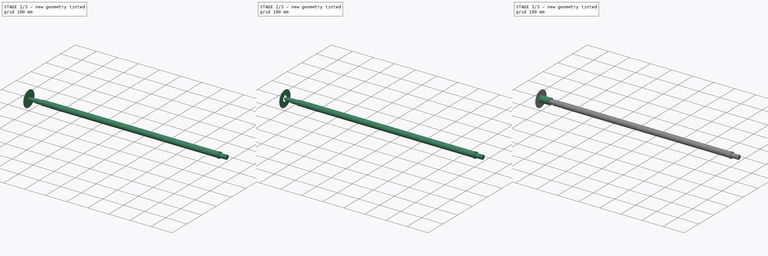
[diagram: build sequence overview — one tinted view per stage of 3, left to right]
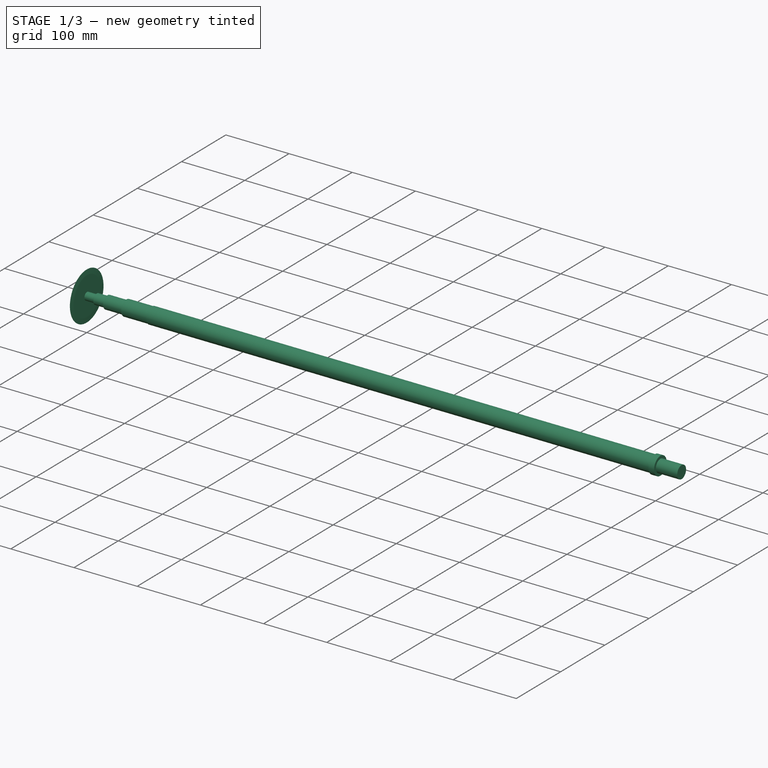
[diagram: stage 1 of 3 — iso view after this stage's code; geometry added in this stage tinted green]
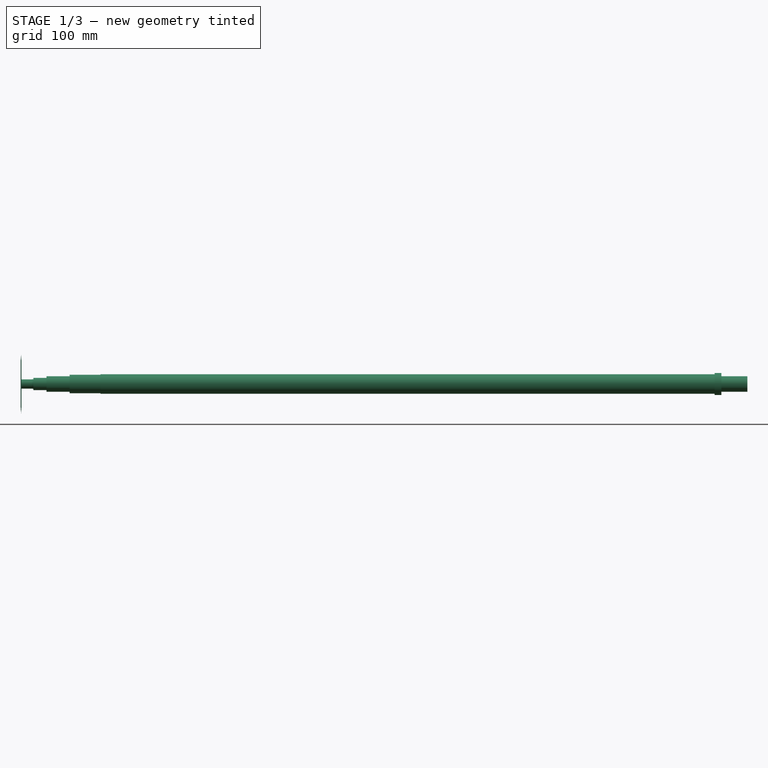
[diagram: stage 1 of 3 — front view after this stage's code; geometry added in this stage tinted green]
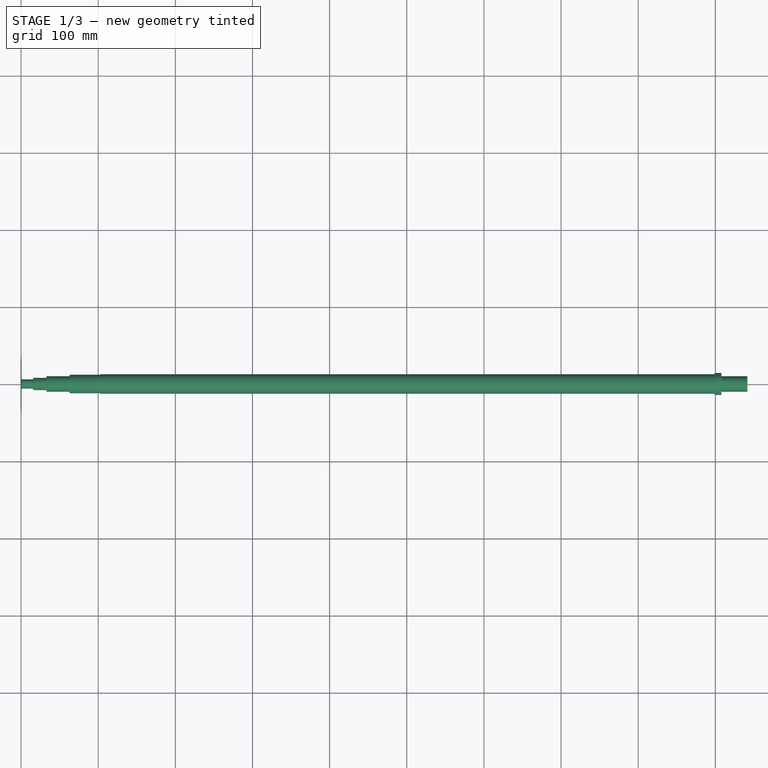
[diagram: stage 1 of 3 — top view after this stage's code; geometry added in this stage tinted green]
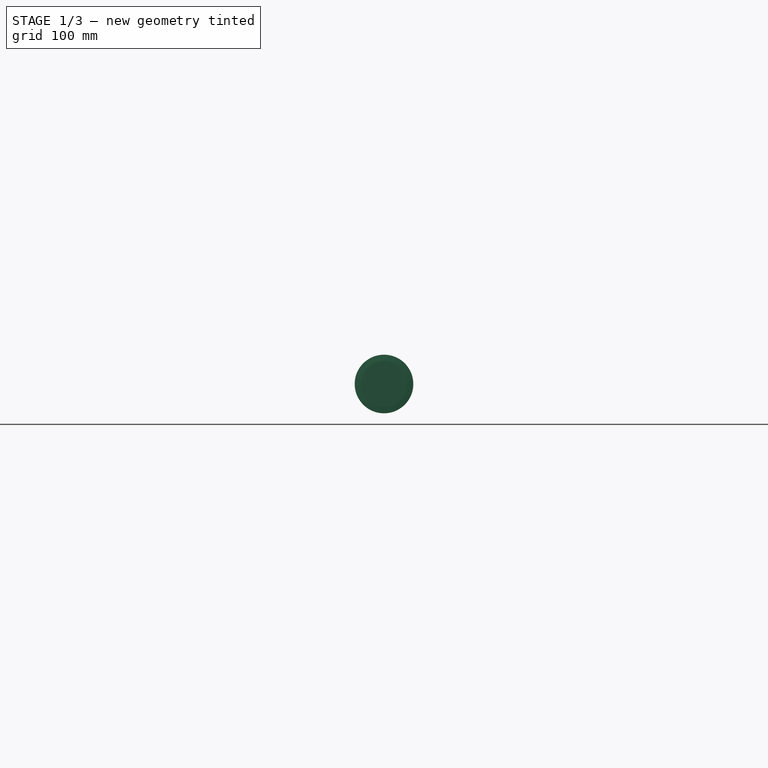
[diagram: stage 1 of 3 — right view after this stage's code; geometry added in this stage tinted green]
FCSTD DOCUMENT  (FreeCAD 0.20R29410 (Git))
Label: cutting_roll
License: All rights reserved
LicenseURL: http://en.wikipedia.org/wiki/All_rights_reserved
objects: App::Link×31, PartDesign::CoordinateSystem×19, Sketcher::SketchObject×8, PartDesign::Body×5, PartDesign::Pad×3, App::DocumentObjectGroup×3, PartDesign::Revolution×2, PartDesign::Mirrored×2, PartDesign::Pocket×1, App::FeaturePython×1, App::Part×1
note: 46 computed .brp shape members not serialized (recipe doc carries the construction recipe); baked Part::Feature solids carry a one-line shape summary decoded from their .brp

FEATURE [Sketcher::SketchObject] Sketch001  label="disk_sketch"
  FullyConstrained = true
  MapMode = 5
  Placement = pos=(0,0,0) rot=(1,0,0;1.5708rad)
  Support = -> [XZ_Plane001]
  sketch-geometry (4):
    g0: LineSegment StartX=0 StartY=38 StartZ=0 EndX=0.55 EndY=30 EndZ=0
    g1: LineSegment StartX=0.55 StartY=30 StartZ=0 EndX=0.55 EndY=0 EndZ=0
    g2: LineSegment StartX=0.55 StartY=0 StartZ=0 EndX=0 EndY=0 EndZ=0
    g3: LineSegment StartX=0 StartY=0 StartZ=0 EndX=0 EndY=38 EndZ=0
  constraints (11):
    c: PointOnObject(g0,g-2)
    c: Coincident(g1,g0)
    c: Vertical(g1)
    c: Coincident(g2,g1)
    c: Horizontal(g2)
    c: Coincident(g3,g2)
    c: Coincident(g3,g0)
    c: Coincident(g2,g-1)
    c: Distance(g3) = 38  'r'
    c: Distance(g2) = 0.55  'thickness_x2'
    c: Distance(g1) = 30
FEATURE [PartDesign::Revolution] Revolution
  Angle = 360
  Axis = (1,0,0)
  Base = (0,0,0)
  Placement = pos=(0,0,0) rot=(1,0,0;1.5708rad)
  Profile = -> Sketch001
  ReferenceAxis = -> Sketch001 [H_Axis]
FEATURE [Sketcher::SketchObject] Sketch002
  FullyConstrained = true
  MapMode = 5
  Placement = pos=(0,0,0) rot=(0.57735,0.57735,0.57735;2.0944rad)
  Support = -> [YZ_Plane001]
  sketch-geometry (4):
    g0: LineSegment StartX=3 StartY=12.3406 StartZ=0 EndX=3 EndY=16.3 EndZ=0
    g1: LineSegment StartX=3 StartY=16.3 StartZ=0 EndX=0 EndY=16.3 EndZ=0
    g2: LineSegment StartX=0 StartY=16.3 StartZ=0 EndX=0 EndY=-12.7 EndZ=0
    g3: ArcOfCircle CenterX=0 CenterY=0 CenterZ=0 NormalX=0 NormalY=0 NormalZ=1 AngleXU=0 Radius=12.7 StartAngle=4.71239 EndAngle=7.61551
  constraints (12):
    c: Vertical(g0)
    c: Coincident(g0,g1)
    c: PointOnObject(g1,g-2)
    c: Horizontal(g1)
    c: Coincident(g1,g2)
    c: PointOnObject(g2,g-2)
    c: Coincident(g3,g-1)
    c: Coincident(g3,g2)
    c: Coincident(g3,g0)
    c: Diameter(g3) = 25.4
    c: Distance(g1) = 3
    c: Distance(g2) = 29
FEATURE [PartDesign::Mirrored] Mirrored
  BaseFeature = -> Revolution
  MirrorPlane = -> Sketch001 [V_Axis]
  Originals = -> [Revolution]
  Placement = pos=(0,0,0) rot=(1,0,0;1.5708rad)
FEATURE [PartDesign::CoordinateSystem] back002
  AttacherType = Attacher::AttachEngine3D
  AttachmentOffset = pos=(30,0,0) rot=(0,0,1;0rad)
  MapMode = 5
  Placement = pos=(30,0,0) rot=(0,0,1;0rad)
  Support = -> [XY_Plane005]
  expr: .AttachmentOffset.Base.x = Pad002.Length
FEATURE [PartDesign::CoordinateSystem] front002
  AttacherType = Attacher::AttachEngine3D
  MapMode = 5
  Support = -> [XY_Plane005]
FEATURE [PartDesign::Body] Body003  label="spacer_30mm"
  Group = -> [Sketch004,Pad002,front002,back002]
  Origin = -> Origin005
  Tip = -> Pad002
FEATURE [PartDesign::CoordinateSystem] LCS_0
  AttacherType = Attacher::AttachEngine3D
  MapMode = 2
  Support = -> [X_Axis006]
FEATURE [Sketcher::SketchObject] Sketch006
  FullyConstrained = true
  MapMode = 5
  Placement = pos=(0,0,0) rot=(1,0,0;1.5708rad)
  Support = -> [XZ_Plane006]
  sketch-geometry (18):
    g0: LineSegment StartX=0 StartY=0 StartZ=0 EndX=0 EndY=6 EndZ=0
    g1: LineSegment StartX=0 StartY=6 StartZ=0 EndX=14 EndY=6 EndZ=0
    g2: LineSegment StartX=16 StartY=6.25 StartZ=0 EndX=16 EndY=8 EndZ=0
    g3: LineSegment StartX=16 StartY=8 StartZ=0 EndX=33 EndY=8 EndZ=0
    g4: LineSegment StartX=33 StartY=8 StartZ=0 EndX=33 EndY=10 EndZ=0
    g5: LineSegment StartX=33 StartY=10 StartZ=0 EndX=63 EndY=10 EndZ=0
    g6: LineSegment StartX=63 StartY=10 StartZ=0 EndX=63 EndY=12 EndZ=0
    g7: LineSegment StartX=63 StartY=12 StartZ=0 EndX=103 EndY=12 EndZ=0
    g8: LineSegment StartX=103 StartY=12 StartZ=0 EndX=103 EndY=12.65 EndZ=0
    g9: LineSegment StartX=941.5 StartY=0 StartZ=0 EndX=0 EndY=0 EndZ=0
    g10: LineSegment StartX=899 StartY=12.65 StartZ=0 EndX=899 EndY=14.25 EndZ=0
    g11: LineSegment StartX=899 StartY=14.25 StartZ=0 EndX=907.8 EndY=14.25 EndZ=0
    g12: LineSegment StartX=907.8 StartY=14.25 StartZ=0 EndX=907.8 EndY=10 EndZ=0
    g13: LineSegment StartX=907.8 StartY=10 StartZ=0 EndX=941.5 EndY=10 EndZ=0
    g14: LineSegment StartX=941.5 StartY=10 StartZ=0 EndX=941.5 EndY=0 EndZ=0
    g15: LineSegment StartX=14 StartY=6 StartZ=0 EndX=16 EndY=6.25 EndZ=0
    g16: LineSegment StartX=103 StartY=12.65 StartZ=0 EndX=501 EndY=12.65 EndZ=0
    g17: LineSegment StartX=501 StartY=12.65 StartZ=0 EndX=899 EndY=12.65 EndZ=0
  constraints (58):
    c: Coincident(g-1,g0)
    c: PointOnObject(g0,g-2)
    c: Coincident(g0,g1)
    c: Horizontal(g1)
    c: Vertical(g2)
    c: Coincident(g2,g3)
    c: Horizontal(g3)
    c: Coincident(g3,g4)
    c: Vertical(g4)
    c: Coincident(g4,g5)
    c: Horizontal(g5)
    c: Coincident(g5,g6)
    c: Vertical(g6)
    c: Coincident(g6,g7)
    c: Horizontal(g7)
    c: Coincident(g7,g8)
    c: Vertical(g8)
    c: Coincident(g8,g16)
    c: PointOnObject(g9,g-1)
    c: Coincident(g9,g0)
    c: DistanceY(g0) = 6
    c: DistanceY(g2) = 8
    c: DistanceY(g4) = 10
    c: DistanceY(g6) = 12
    c: DistanceY(g8) = 12.65
    c: Distance(g3) = 17
    c: Distance(g5) = 30
    c: Distance(g7) = 40  'thread2_length'
    c: Coincident(g17,g10)
    c: Vertical(g10)
    c: Coincident(g10,g11)
    c: Horizontal(g11)
    c: Coincident(g11,g12)
    c: Vertical(g12)
    c: Coincident(g12,g13)
    c: Horizontal(g13)
    c: Coincident(g13,g14)
    c: Coincident(g14,g9)
    c: Vertical(g14)
    c: Distance(g11) = 8.8
    c: Distance(g13) = 33.7
    c: DistanceY(g10) = 14.25
    c: DistanceY(g12) = 10
    c: DistanceX(g15,g2) = 2
    c: DistanceY(g15) = 6.25
    c: DistanceX(g2) = 16
    c: Coincident(g1,g15)
    c: Coincident(g2,g15)
    c: DistanceX(g8) = 103  'roll_begin'
    c: DistanceX(g17) = 899  'roll_end'
    c: DistanceX(g6) = 63  'left_20mm_end'
    c: DistanceX(g12) = 907.8  'right_20mm_end'
    c: Coincident(g16,g17)
    c: Horizontal(g16)
    c: Horizontal(g17)
    c: Distance(g16,g17) = 796
    c: Equal(g16,g17)
    c: DistanceX(g16) = 501  'roll_middle'
FEATURE [PartDesign::Revolution] Revolution001
  Angle = 360
  Axis = (1,0,0)
  Base = (0,0,0)
  Placement = pos=(0,0,0) rot=(1,0,0;1.5708rad)
  Profile = -> Sketch006
  ReferenceAxis = -> Sketch006 [H_Axis]
FEATURE [PartDesign::CoordinateSystem] Local_CS  label="roll_begin"
  AttacherType = Attacher::AttachEngine3D
  AttachmentOffset = pos=(103,0,0) rot=(0,0,1;0rad)
  MapMode = 5
  Placement = pos=(103,0,0) rot=(0,0,1;0rad)
  Support = -> [XY_Plane006]
  expr: .AttachmentOffset.Base.x = Sketch006.Constraints.roll_begin
FEATURE [PartDesign::CoordinateSystem] Local_CS001  label="roll_end"
  AttacherType = Attacher::AttachEngine3D
  AttachmentOffset = pos=(899,0,0) rot=(0,0,1;0rad)
  MapMode = 5
  Placement = pos=(899,0,0) rot=(0,0,1;0rad)
  Support = -> [XY_Plane006]
  expr: .AttachmentOffset.Base.x = Sketch006.Constraints.roll_end
FEATURE [App::Link] axis001
  AssemblyType = Part::Link
  AttachedBy = #LCS_0
  AttachedTo = Parent Assembly#LCS_Origin
  LinkedObject = -> axis
  SolverId = Asm4EE
  expr: Placement = LCS_Origin.Placement * AttachmentOffset * LCS_0.Placement ^ -1
FEATURE [PartDesign::CoordinateSystem] Local_CS002  label="disk_end"
  AttacherType = Attacher::AttachEngine3D
  AttachmentOffset = pos=(0.55,0,0) rot=(0,0,1;0rad)
  MapMode = 5
  Placement = pos=(0.55,0,0) rot=(0,0,1;0rad)
  Support = -> [XY_Plane001]
  expr: .AttachmentOffset.Base.x = Sketch001.Constraints.thickness_x2
FEATURE [PartDesign::CoordinateSystem] Local_CS003  label="disk_begin"
  AttacherType = Attacher::AttachEngine3D
  AttachmentOffset = pos=(-0.55,0,0) rot=(0,0,1;0rad)
  MapMode = 5
  Placement = pos=(-0.55,0,0) rot=(0,0,1;0rad)
  Support = -> [XY_Plane001]
  expr: .AttachmentOffset.Base.x = -Sketch001.Constraints.thickness_x2
FEATURE [App::Link] cutting_disk  label="cutting_disk001"
  AssemblyType = Part::Link
  AttachedBy = #Local_CS006
  AttachedTo = axis001#roll_middle
  LinkPlacement = pos=(501,0,0) rot=(0,0,1;0rad)
  LinkedObject = -> Body001
  Placement = pos=(501,0,0) rot=(0,0,1;0rad)
  SolverId = Asm4EE
  expr: .AttachmentOffset.Base.x = 0
  expr: Placement = axis001.Placement * roll_middle.Placement * AttachmentOffset * Local_CS006.Placement ^ -1
FEATURE [Sketcher::SketchObject] Sketch007
  AttachmentOffset = pos=(-1.75,0,0) rot=(0,0,1;0rad)
  FullyConstrained = true
  MapMode = 5
  Placement = pos=(-1.75,0,0) rot=(0,0,1;0rad)
  Support = -> [XY_Plane006]
  expr: .AttachmentOffset.Base.x = -1.75
  sketch-geometry (6):
    g0: LineSegment StartX=-0.1095 StartY=5.053 StartZ=0 EndX=0 EndY=5.053 EndZ=0
    g1: LineSegment StartX=0 StartY=5.053 StartZ=0 EndX=0.1095 EndY=5.053 EndZ=0
    g2: LineSegment StartX=0.1095 StartY=5.053 StartZ=0 EndX=0.656251 EndY=6 EndZ=0
    g3: LineSegment StartX=0.656251 StartY=6 StartZ=0 EndX=0 EndY=6 EndZ=0
    g4: LineSegment StartX=0 StartY=6 StartZ=0 EndX=-0.656251 EndY=6 EndZ=0
    g5: LineSegment StartX=-0.656251 StartY=6 StartZ=0 EndX=-0.1095 EndY=5.053 EndZ=0
  constraints (18):
    c: PointOnObject(g0,g-2)
    c: Horizontal(g0)
    c: Coincident(g0,g1)
    c: Horizontal(g1)
    c: Coincident(g1,g2)
    c: Coincident(g2,g3)
    c: PointOnObject(g3,g-2)
    c: Horizontal(g3)
    c: Coincident(g3,g4)
    c: Horizontal(g4)
    c: Coincident(g4,g5)
    c: Coincident(g5,g0)
    c: Equal(g0,g1)
    c: Equal(g4,g3)
    c: DistanceY(g3) = 6
    c: DistanceY(g0) = 5.053
    c: DistanceX(g0,g1) = 0.219
    c: Angle(g-2,g2) = 2.61799
FEATURE [Sketcher::SketchObject] Sketch008
  AttachmentOffset = pos=(61.813,0,0) rot=(0,0,1;0rad)
  FullyConstrained = true
  MapMode = 5
  Placement = pos=(61.813,0,0) rot=(0,0,1;0rad)
  Support = -> [XY_Plane006]
  expr: .AttachmentOffset.Base.x = Sketch006.Constraints.roll_begin - Sketch006.Constraints.thread2_length - (.Constraints.root + sin(30) * (.Constraints.major_r - .Constraints.minor_r))
  sketch-geometry (6):
    g0: LineSegment StartX=0 StartY=10.376 StartZ=0 EndX=0.1875 EndY=10.376 EndZ=0
    g1: LineSegment StartX=0.1875 StartY=10.376 StartZ=0 EndX=1.12512 EndY=12 EndZ=0
    g2: LineSegment StartX=1.12512 StartY=12 StartZ=0 EndX=0 EndY=12 EndZ=0
    g3: LineSegment StartX=0 StartY=12 StartZ=0 EndX=-1.12512 EndY=12 EndZ=0
    g4: LineSegment StartX=-1.12512 StartY=12 StartZ=0 EndX=-0.1875 EndY=10.376 EndZ=0
    g5: LineSegment StartX=-0.1875 StartY=10.376 StartZ=0 EndX=0 EndY=10.376 EndZ=0
  constraints (19):
    c: PointOnObject(g0,g-2)
    c: Horizontal(g0)
    c: Coincident(g0,g1)
    c: Coincident(g1,g2)
    c: PointOnObject(g2,g-2)
    c: Horizontal(g2)
    c: Coincident(g2,g3)
    c: Horizontal(g3)
    c: Coincident(g3,g4)
    c: Coincident(g4,g5)
    c: Coincident(g5,g0)
    c: Horizontal(g5)
    c: Equal(g5,g0)
    c: Equal(g3,g2)
    c: Angle(g-2,g1) = 2.61799
    c: DistanceY(g2) = 12  'major_r'
    c: DistanceY(g0) = 10.376  'minor_r'
    c: DistanceX(g4,g0) = 0.375  'root'
    c: Distance(g1,g3) = 2.25023  'top_distance'
FEATURE [PartDesign::CoordinateSystem] Local_CS004  label="left_20mm"
  AttacherType = Attacher::AttachEngine3D
  AttachmentOffset = pos=(63,0,0) rot=(0.57735,-0.57735,-0.57735;2.0944rad)
  MapMode = 5
  Placement = pos=(63,0,0) rot=(0.57735,-0.57735,-0.57735;2.0944rad)
  Support = -> [XY_Plane006]
  expr: .AttachmentOffset.Base.x = Sketch006.Constraints.left_20mm_end
FEATURE [PartDesign::CoordinateSystem] Local_CS005  label="right_20mm"
  AttacherType = Attacher::AttachEngine3D
  AttachmentOffset = pos=(907.8,0,0) rot=(0.57735,0.57735,0.57735;2.0944rad)
  MapMode = 5
  Placement = pos=(907.8,0,0) rot=(0.57735,0.57735,0.57735;2.0944rad)
  Support = -> [XY_Plane006]
  expr: .AttachmentOffset.Base.x = Sketch006.Constraints.right_20mm_end
FEATURE [PartDesign::CoordinateSystem] left_20mm  label="left_20mm001"
  AttacherType = Attacher::AttachEngine3D
  AttachmentOffset = pos=(63,0,0) rot=(0.57735,-0.57735,-0.57735;2.0944rad)
  MapMode = 5
  Placement = pos=(63,0,0) rot=(0.57735,-0.57735,-0.57735;2.0944rad)
  Support = -> [XY_Plane003]
  expr: AttachmentOffset = <<left_20mm>>.AttachmentOffset
FEATURE [PartDesign::CoordinateSystem] right_20mm  label="right_20mm001"
  AttacherType = Attacher::AttachEngine3D
  AttachmentOffset = pos=(907.8,0,0) rot=(0.57735,0.57735,0.57735;2.0944rad)
  MapMode = 5
  Placement = pos=(907.8,0,0) rot=(0.57735,0.57735,0.57735;2.0944rad)
  Support = -> [XY_Plane003]
  expr: AttachmentOffset = <<right_20mm>>.AttachmentOffset
FEATURE [PartDesign::CoordinateSystem] roll_middle
  AttacherType = Attacher::AttachEngine3D
  AttachmentOffset = pos=(501,0,0) rot=(0,0,1;0rad)
  MapMode = 5
  Placement = pos=(501,0,0) rot=(0,0,1;0rad)
  Support = -> [XY_Plane006]
  expr: .AttachmentOffset.Base.x = Sketch006.Constraints.roll_middle
FEATURE [PartDesign::Body] axis
  Group = -> [LCS_0,Sketch006,Revolution001,Local_CS,Local_CS001,Sketch007,Sketch008,Local_CS004,Local_CS005,roll_middle]
  Origin = -> Origin006
  Tip = -> Revolution001
FEATURE [App::Link] spacer_49mm  label="spacer_49mm001"
  AssemblyType = Part::Link
  AttachedBy = #back
  AttachedTo = cutting_disk#Local_CS003
  LinkPlacement = pos=(451.6,0,0) rot=(0,0,1;0rad)
  LinkedObject = -> Body
  Placement = pos=(451.6,0,0) rot=(0,0,1;0rad)
  SolverId = Asm4EE
  expr: Placement = cutting_disk.Placement * Local_CS003.Placement * AttachmentOffset * back.Placement ^ -1
FEATURE [App::Link] cutting_disk001  label="cutting_disk002"
  AssemblyType = Part::Link
  AttachedBy = #Local_CS002
  AttachedTo = spacer_49mm#front
  LinkPlacement = pos=(451.05,0,0) rot=(0,0,1;0rad)
  LinkedObject = -> Body001
  Placement = pos=(451.05,0,0) rot=(0,0,1;0rad)
  SolverId = Asm4EE
  expr: Placement = spacer_49mm.Placement * front.Placement * AttachmentOffset * Local_CS002.Placement ^ -1
FEATURE [App::Link] spacer_49mm001  label="spacer_49mm002"
  AssemblyType = Part::Link
  AttachedBy = #back
  AttachedTo = cutting_disk001#Local_CS003
  LinkPlacement = pos=(401.65,0,0) rot=(0,0,1;0rad)
  LinkedObject = -> Body
  Placement = pos=(401.65,0,0) rot=(0,0,1;0rad)
  SolverId = Asm4EE
  expr: Placement = cutting_disk001.Placement * Local_CS003.Placement * AttachmentOffset * back.Placement ^ -1
FEATURE [App::Link] cutting_disk002  label="cutting_disk003"
  AssemblyType = Part::Link
  AttachedBy = #Local_CS002
  AttachedTo = spacer_49mm001#front
  LinkPlacement = pos=(401.1,0,0) rot=(0,0,1;0rad)
  LinkedObject = -> Body001
  Placement = pos=(401.1,0,0) rot=(0,0,1;0rad)
  SolverId = Asm4EE
  expr: Placement = spacer_49mm001.Placement * front.Placement * AttachmentOffset * Local_CS002.Placement ^ -1
FEATURE [App::Link] spacer_49mm002  label="spacer_49mm003"
  AssemblyType = Part::Link
  AttachedBy = #back
  AttachedTo = cutting_disk002#Local_CS003
  LinkPlacement = pos=(351.7,0,0) rot=(0,0,1;0rad)
  LinkedObject = -> Body
  Placement = pos=(351.7,0,0) rot=(0,0,1;0rad)
  SolverId = Asm4EE
  expr: Placement = cutting_disk002.Placement * Local_CS003.Placement * AttachmentOffset * back.Placement ^ -1
FEATURE [App::Link] cutting_disk003  label="cutting_disk004"
  AssemblyType = Part::Link
  AttachedBy = #Local_CS002
  AttachedTo = spacer_49mm002#front
  LinkPlacement = pos=(351.15,0,0) rot=(0,0,1;0rad)
  LinkedObject = -> Body001
  Placement = pos=(351.15,0,0) rot=(0,0,1;0rad)
  SolverId = Asm4EE
  expr: Placement = spacer_49mm002.Placement * front.Placement * AttachmentOffset * Local_CS002.Placement ^ -1
FEATURE [App::Link] spacer_49mm003  label="spacer_49mm004"
  AssemblyType = Part::Link
  AttachedBy = #back
  AttachedTo = cutting_disk003#Local_CS003
  LinkPlacement = pos=(301.75,0,0) rot=(0,0,1;0rad)
  LinkedObject = -> Body
  Placement = pos=(301.75,0,0) rot=(0,0,1;0rad)
  SolverId = Asm4EE
  expr: Placement = cutting_disk003.Placement * Local_CS003.Placement * AttachmentOffset * back.Placement ^ -1
FEATURE [PartDesign::CoordinateSystem] Local_CS006  label="disk_middle"
  AttacherType = Attacher::AttachEngine3D
  MapMode = 5
  Support = -> [XY_Plane001]
FEATURE [PartDesign::Body] Body001  label="cutting_disk"
  Group = -> [Sketch001,Revolution,Sketch002,Mirrored,Pocket,Mirrored001,Local_CS002,Local_CS003,Local_CS006]
  Origin = -> Origin001
  Tip = -> Mirrored001
FEATURE [App::DocumentObjectGroup] Parts
  Group = -> [Body,Body001,Body002,Body003,axis]
FEATURE [App::Link] cutting_disk004  label="cutting_disk005"
  AssemblyType = Part::Link
  AttachedBy = #Local_CS002
  AttachedTo = spacer_49mm003#front
  LinkPlacement = pos=(301.2,0,0) rot=(0,0,1;0rad)
  LinkedObject = -> Body001
  Placement = pos=(301.2,0,0) rot=(0,0,1;0rad)
  SolverId = Asm4EE
  expr: Placement = spacer_49mm003.Placement * front.Placement * AttachmentOffset * Local_CS002.Placement ^ -1
FEATURE [App::Link] spacer_49mm004  label="spacer_49mm005"
  AssemblyType = Part::Link
  AttachedBy = #back
  AttachedTo = cutting_disk004#Local_CS003
  LinkPlacement = pos=(251.8,0,0) rot=(0,0,1;0rad)
  LinkedObject = -> Body
  Placement = pos=(251.8,0,0) rot=(0,0,1;0rad)
  SolverId = Asm4EE
  expr: Placement = cutting_disk004.Placement * Local_CS003.Placement * AttachmentOffset * back.Placement ^ -1
FEATURE [App::Link] cutting_disk005  label="cutting_disk006"
  AssemblyType = Part::Link
  AttachedBy = #Local_CS002
  AttachedTo = spacer_49mm004#front
  LinkPlacement = pos=(251.25,0,0) rot=(0,0,1;0rad)
  LinkedObject = -> Body001
  Placement = pos=(251.25,0,0) rot=(0,0,1;0rad)
  SolverId = Asm4EE
  expr: Placement = spacer_49mm004.Placement * front.Placement * AttachmentOffset * Local_CS002.Placement ^ -1
FEATURE [App::Link] spacer_49mm005  label="spacer_49mm006"
  AssemblyType = Part::Link
  AttachedBy = #back
  AttachedTo = cutting_disk005#Local_CS003
  LinkPlacement = pos=(201.85,0,0) rot=(0,0,1;0rad)
  LinkedObject = -> Body
  Placement = pos=(201.85,0,0) rot=(0,0,1;0rad)
  SolverId = Asm4EE
  expr: Placement = cutting_disk005.Placement * Local_CS003.Placement * AttachmentOffset * back.Placement ^ -1
FEATURE [App::Link] cutting_disk006  label="cutting_disk007"
  AssemblyType = Part::Link
  AttachedBy = #Local_CS002
  AttachedTo = spacer_49mm005#front
  LinkPlacement = pos=(201.3,0,0) rot=(0,0,1;0rad)
  LinkedObject = -> Body001
  Placement = pos=(201.3,0,0) rot=(0,0,1;0rad)
  SolverId = Asm4EE
  expr: Placement = spacer_49mm005.Placement * front.Placement * AttachmentOffset * Local_CS002.Placement ^ -1
FEATURE [App::Link] spacer_49mm006  label="spacer_49mm007"
  AssemblyType = Part::Link
  AttachedBy = #back
  AttachedTo = cutting_disk006#Local_CS003
  LinkPlacement = pos=(151.9,0,0) rot=(0,0,1;0rad)
  LinkedObject = -> Body
  Placement = pos=(151.9,0,0) rot=(0,0,1;0rad)
  SolverId = Asm4EE
  expr: Placement = cutting_disk006.Placement * Local_CS003.Placement * AttachmentOffset * back.Placement ^ -1
FEATURE [App::Link] cutting_disk007  label="cutting_disk008"
  AssemblyType = Part::Link
  AttachedBy = #Local_CS002
  AttachedTo = spacer_49mm006#front
  LinkPlacement = pos=(151.35,0,0) rot=(0,0,1;0rad)
  LinkedObject = -> Body001
  Placement = pos=(151.35,0,0) rot=(0,0,1;0rad)
  SolverId = Asm4EE
  expr: Placement = spacer_49mm006.Placement * front.Placement * AttachmentOffset * Local_CS002.Placement ^ -1
FEATURE [App::Link] spacer_49mm007  label="spacer_49mm008"
  AssemblyType = Part::Link
  AttachedBy = #front
  AttachedTo = cutting_disk#Local_CS002
  LinkPlacement = pos=(501.55,0,0) rot=(0,0,1;0rad)
  LinkedObject = -> Body
  Placement = pos=(501.55,0,0) rot=(0,0,1;0rad)
  SolverId = Asm4EE
  expr: Placement = cutting_disk.Placement * Local_CS002.Placement * AttachmentOffset * front.Placement ^ -1
FEATURE [App::Link] cutting_disk008  label="cutting_disk009"
  AssemblyType = Part::Link
  AttachedBy = #Local_CS003
  AttachedTo = spacer_49mm007#back
  LinkPlacement = pos=(550.95,0,0) rot=(0,0,1;0rad)
  LinkedObject = -> Body001
  Placement = pos=(550.95,0,0) rot=(0,0,1;0rad)
  SolverId = Asm4EE
  expr: Placement = spacer_49mm007.Placement * back.Placement * AttachmentOffset * Local_CS003.Placement ^ -1
FEATURE [App::Link] spacer_49mm008  label="spacer_49mm009"
  AssemblyType = Part::Link
  AttachedBy = #front
  AttachedTo = cutting_disk008#Local_CS002
  LinkPlacement = pos=(551.5,0,0) rot=(0,0,1;0rad)
  LinkedObject = -> Body
  Placement = pos=(551.5,0,0) rot=(0,0,1;0rad)
  SolverId = Asm4EE
  expr: Placement = cutting_disk008.Placement * Local_CS002.Placement * AttachmentOffset * front.Placement ^ -1
FEATURE [App::Link] cutting_disk009  label="cutting_disk010"
  AssemblyType = Part::Link
  AttachedBy = #Local_CS003
  AttachedTo = spacer_49mm008#back
  LinkPlacement = pos=(600.9,0,0) rot=(0,0,1;0rad)
  LinkedObject = -> Body001
  Placement = pos=(600.9,0,0) rot=(0,0,1;0rad)
  SolverId = Asm4EE
  expr: Placement = spacer_49mm008.Placement * back.Placement * AttachmentOffset * Local_CS003.Placement ^ -1
FEATURE [App::Link] spacer_49mm009  label="spacer_49mm010"
  AssemblyType = Part::Link
  AttachedBy = #front
  AttachedTo = cutting_disk009#Local_CS002
  LinkPlacement = pos=(601.45,0,0) rot=(0,0,1;0rad)
  LinkedObject = -> Body
  Placement = pos=(601.45,0,0) rot=(0,0,1;0rad)
  SolverId = Asm4EE
  expr: Placement = cutting_disk009.Placement * Local_CS002.Placement * AttachmentOffset * front.Placement ^ -1
FEATURE [App::Link] cutting_disk010  label="cutting_disk011"
  AssemblyType = Part::Link
  AttachedBy = #Local_CS003
  AttachedTo = spacer_49mm009#back
  LinkPlacement = pos=(650.85,0,0) rot=(0,0,1;0rad)
  LinkedObject = -> Body001
  Placement = pos=(650.85,0,0) rot=(0,0,1;0rad)
  SolverId = Asm4EE
  expr: Placement = spacer_49mm009.Placement * back.Placement * AttachmentOffset * Local_CS003.Placement ^ -1
FEATURE [App::Link] spacer_49mm010  label="spacer_49mm011"
  AssemblyType = Part::Link
  AttachedBy = #front
  AttachedTo = cutting_disk010#Local_CS002
  LinkPlacement = pos=(651.4,0,0) rot=(0,0,1;0rad)
  LinkedObject = -> Body
  Placement = pos=(651.4,0,0) rot=(0,0,1;0rad)
  SolverId = Asm4EE
  expr: Placement = cutting_disk010.Placement * Local_CS002.Placement * AttachmentOffset * front.Placement ^ -1
FEATURE [App::Link] cutting_disk011  label="cutting_disk012"
  AssemblyType = Part::Link
  AttachedBy = #Local_CS003
  AttachedTo = spacer_49mm010#back
  LinkPlacement = pos=(700.8,0,0) rot=(0,0,1;0rad)
  LinkedObject = -> Body001
  Placement = pos=(700.8,0,0) rot=(0,0,1;0rad)
  SolverId = Asm4EE
  expr: Placement = spacer_49mm010.Placement * back.Placement * AttachmentOffset * Local_CS003.Placement ^ -1
FEATURE [App::Link] spacer_49mm011  label="spacer_49mm012"
  AssemblyType = Part::Link
  AttachedBy = #front
  AttachedTo = cutting_disk011#Local_CS002
  LinkPlacement = pos=(701.35,0,0) rot=(0,0,1;0rad)
  LinkedObject = -> Body
  Placement = pos=(701.35,0,0) rot=(0,0,1;0rad)
  SolverId = Asm4EE
  expr: Placement = cutting_disk011.Placement * Local_CS002.Placement * AttachmentOffset * front.Placement ^ -1
FEATURE [App::Link] cutting_disk012  label="cutting_disk013"
  AssemblyType = Part::Link
  AttachedBy = #Local_CS003
  AttachedTo = spacer_49mm011#back
  LinkPlacement = pos=(750.75,0,0) rot=(0,0,1;0rad)
  LinkedObject = -> Body001
  Placement = pos=(750.75,0,0) rot=(0,0,1;0rad)
  SolverId = Asm4EE
  expr: Placement = spacer_49mm011.Placement * back.Placement * AttachmentOffset * Local_CS003.Placement ^ -1
FEATURE [App::Link] spacer_49mm012  label="spacer_49mm013"
  AssemblyType = Part::Link
  AttachedBy = #front
  AttachedTo = cutting_disk012#Local_CS002
  LinkPlacement = pos=(751.3,0,0) rot=(0,0,1;0rad)
  LinkedObject = -> Body
  Placement = pos=(751.3,0,0) rot=(0,0,1;0rad)
  SolverId = Asm4EE
  expr: Placement = cutting_disk012.Placement * Local_CS002.Placement * AttachmentOffset * front.Placement ^ -1
FEATURE [App::Link] cutting_disk013  label="cutting_disk014"
  AssemblyType = Part::Link
  AttachedBy = #Local_CS003
  AttachedTo = spacer_49mm012#back
  LinkPlacement = pos=(800.7,0,0) rot=(0,0,1;0rad)
  LinkedObject = -> Body001
  Placement = pos=(800.7,0,0) rot=(0,0,1;0rad)
  SolverId = Asm4EE
  expr: Placement = spacer_49mm012.Placement * back.Placement * AttachmentOffset * Local_CS003.Placement ^ -1
FEATURE [App::Link] spacer_49mm013  label="spacer_49mm014"
  AssemblyType = Part::Link
  AttachedBy = #front
  AttachedTo = cutting_disk013#Local_CS002
  LinkPlacement = pos=(801.25,0,0) rot=(0,0,1;0rad)
  LinkedObject = -> Body
  Placement = pos=(801.25,0,0) rot=(0,0,1;0rad)
  SolverId = Asm4EE
  expr: Placement = cutting_disk013.Placement * Local_CS002.Placement * AttachmentOffset * front.Placement ^ -1
FEATURE [App::Link] cutting_disk014  label="cutting_disk015"
  AssemblyType = Part::Link
  AttachedBy = #Local_CS003
  AttachedTo = spacer_49mm013#back
  LinkPlacement = pos=(850.65,0,0) rot=(0,0,1;0rad)
  LinkedObject = -> Body001
  Placement = pos=(850.65,0,0) rot=(0,0,1;0rad)
  SolverId = Asm4EE
  expr: Placement = spacer_49mm013.Placement * back.Placement * AttachmentOffset * Local_CS003.Placement ^ -1
FEATURE [App::Link] spacer_49mm014  label="spacer_49mm015"
  AssemblyType = Part::Link
  AttachedBy = #front
  AttachedTo = cutting_disk014#Local_CS002
  LinkPlacement = pos=(851.2,0,0) rot=(0,0,1;0rad)
  LinkedObject = -> Body
  Placement = pos=(851.2,0,0) rot=(0,0,1;0rad)
  SolverId = Asm4EE
  expr: Placement = cutting_disk014.Placement * Local_CS002.Placement * AttachmentOffset * front.Placement ^ -1
FEATURE [PartDesign::CoordinateSystem] center
  AttacherType = Attacher::AttachEngine3D
  MapMode = 5
  Placement = pos=(501,0,0) rot=(0,0,1;0rad)
  Support = -> [roll_middle]
FEATURE [App::Part] Model
  AssemblyType = Part::Link
  Group = -> [LCS_Origin,Constraints,Variables,Configurations,axis001,cutting_disk,left_20mm,right_20mm,spacer_49mm,cutting_disk001,spacer_49mm001,cutting_disk002,spacer_49mm002,cutting_disk003,spacer_49mm003,cutting_disk004,spacer_49mm004,cutting_disk005,spacer_49mm005,cutting_disk006,spacer_49mm006,cutting_disk007,spacer_49mm007,cutting_disk008,spacer_49mm008,cutting_disk009,spacer_49mm009,cutting_disk010,+10 more]
  Origin = -> Origin003
  Type = Assembly
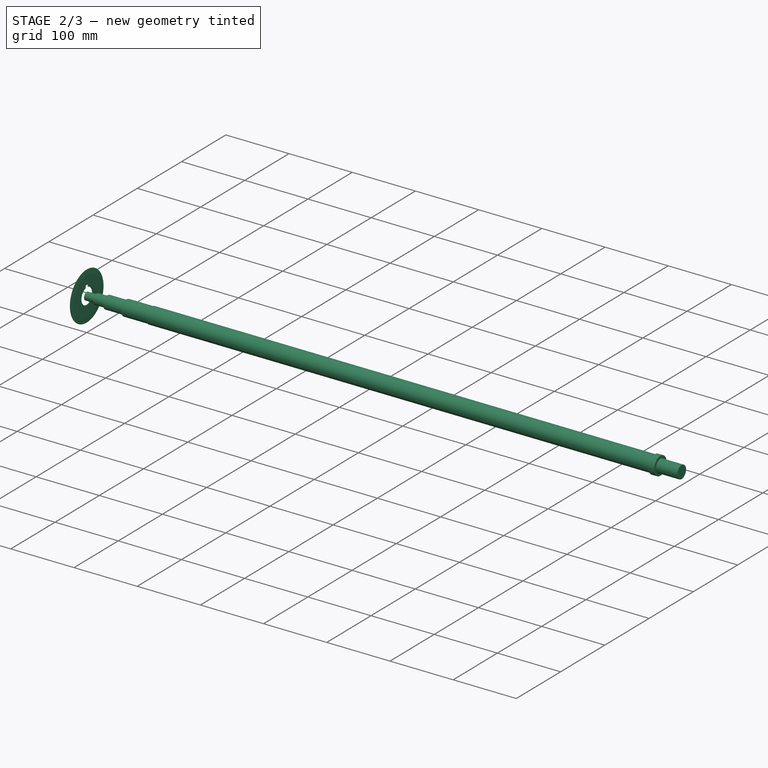
[diagram: stage 2 of 3 — iso view after this stage's code; geometry added in this stage tinted green]
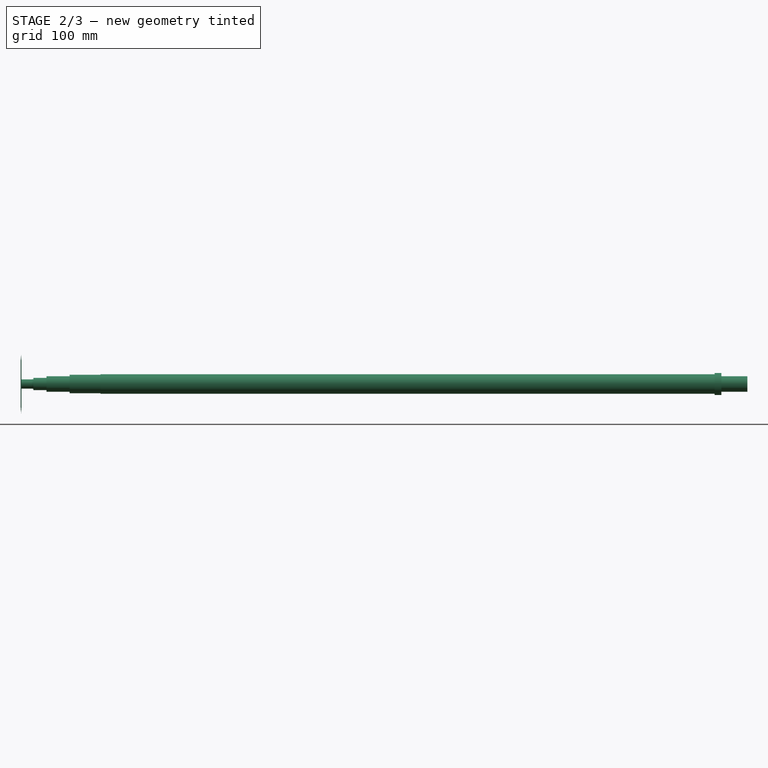
[diagram: stage 2 of 3 — front view after this stage's code; geometry added in this stage tinted green]
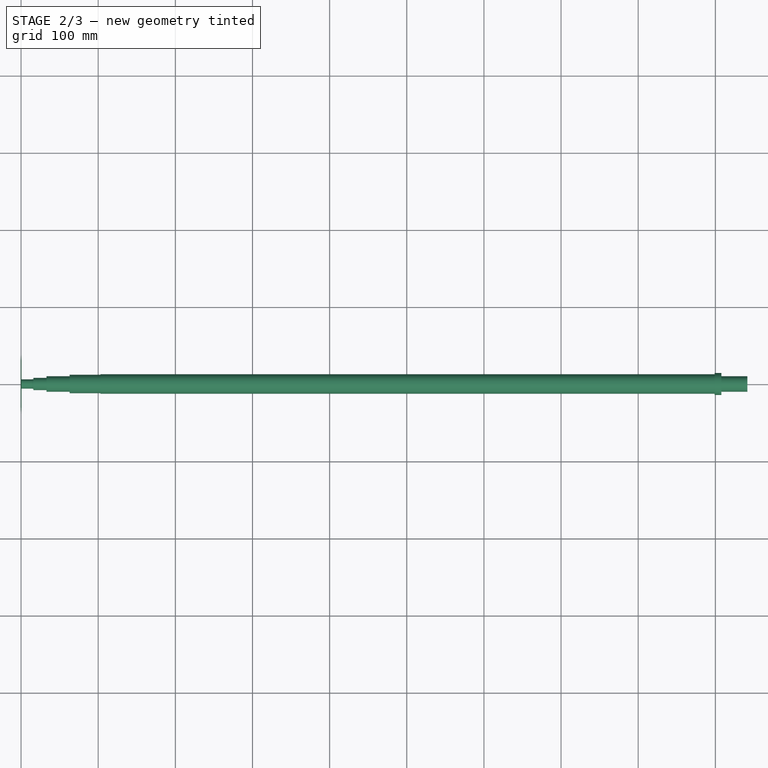
[diagram: stage 2 of 3 — top view after this stage's code; geometry added in this stage tinted green]
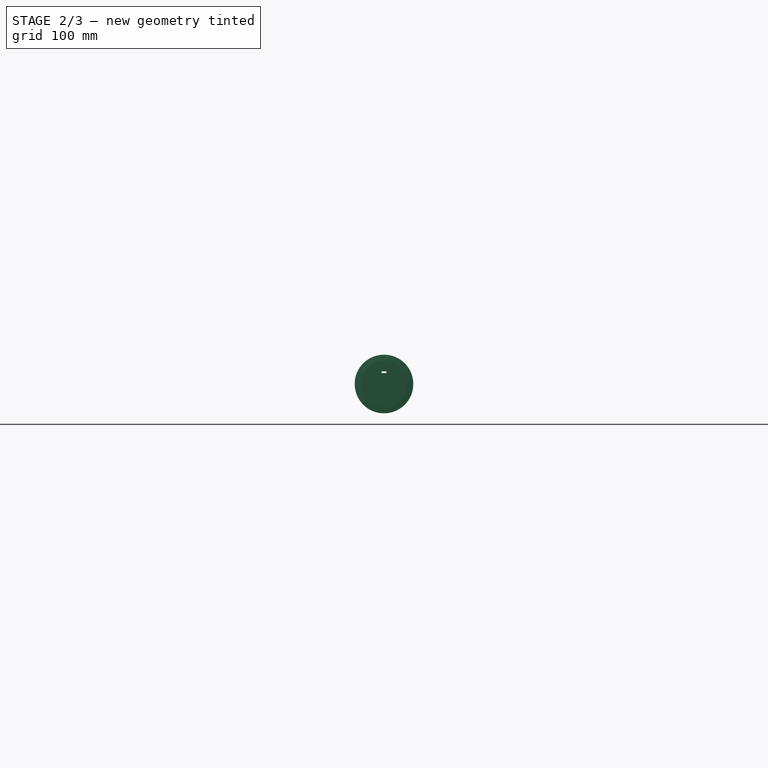
[diagram: stage 2 of 3 — right view after this stage's code; geometry added in this stage tinted green]
FEATURE [PartDesign::Pocket] Pocket
  BaseFeature = -> Mirrored
  Direction = (-1,2e-16,-3e-16)
  Length = 5
  Length2 = 5
  Midplane = true
  Placement = pos=(0,0,0) rot=(1,0,0;1.5708rad)
  Profile = -> Sketch002
  ReferenceAxis = -> Sketch002 [N_Axis]
  Type = 1
FEATURE [PartDesign::Mirrored] Mirrored001
  BaseFeature = -> Pocket
  MirrorPlane = -> Sketch002 [V_Axis]
  Originals = -> [Pocket]
  Placement = pos=(0,0,0) rot=(1,0,0;1.5708rad)
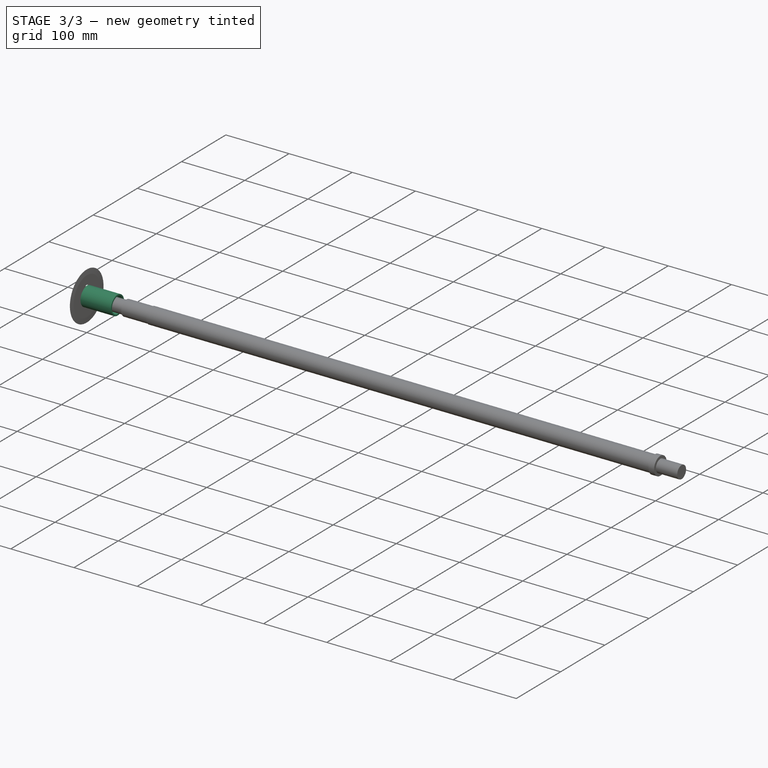
[diagram: stage 3 of 3 — iso view after this stage's code; geometry added in this stage tinted green]
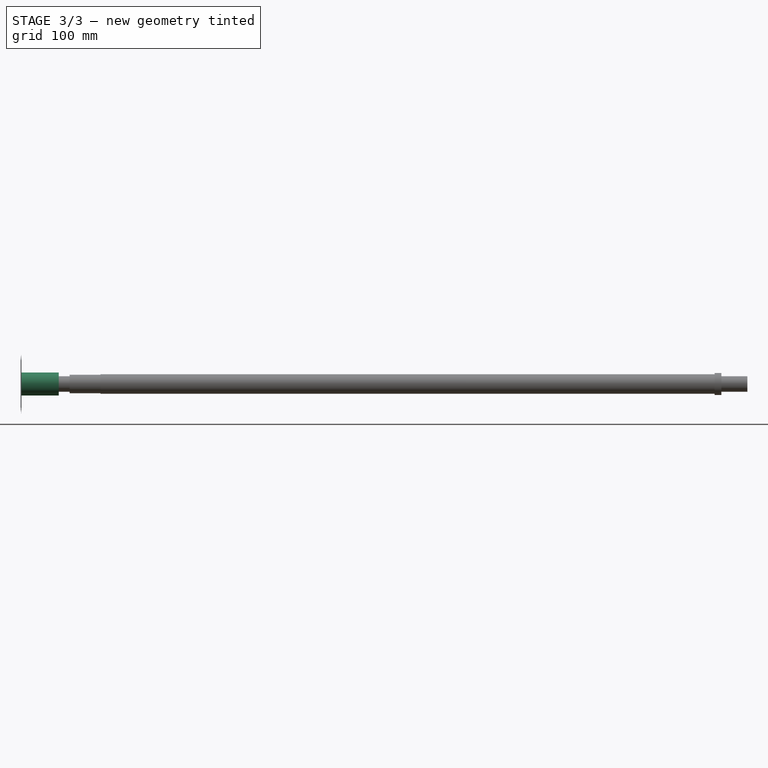
[diagram: stage 3 of 3 — front view after this stage's code; geometry added in this stage tinted green]
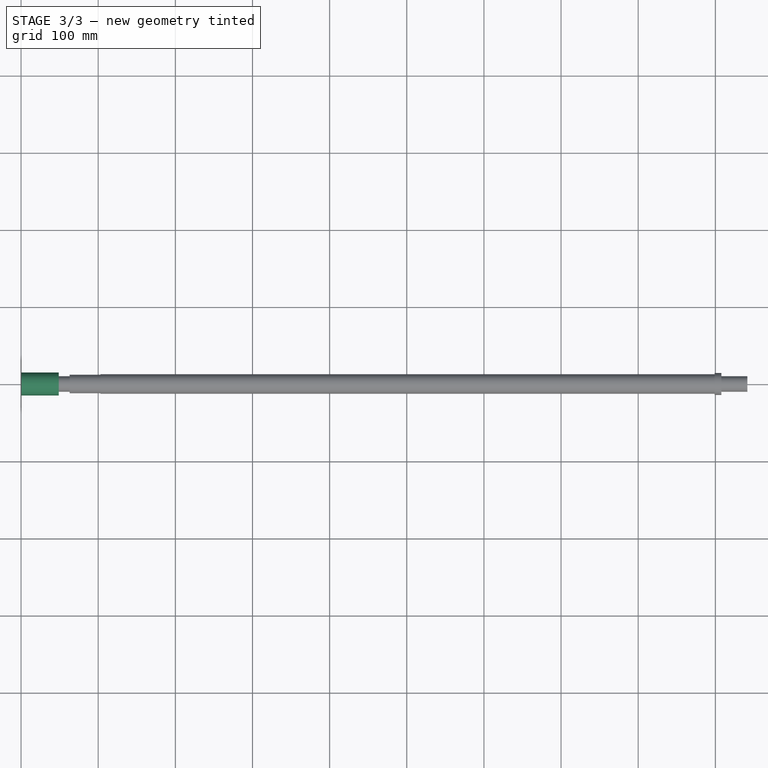
[diagram: stage 3 of 3 — top view after this stage's code; geometry added in this stage tinted green]
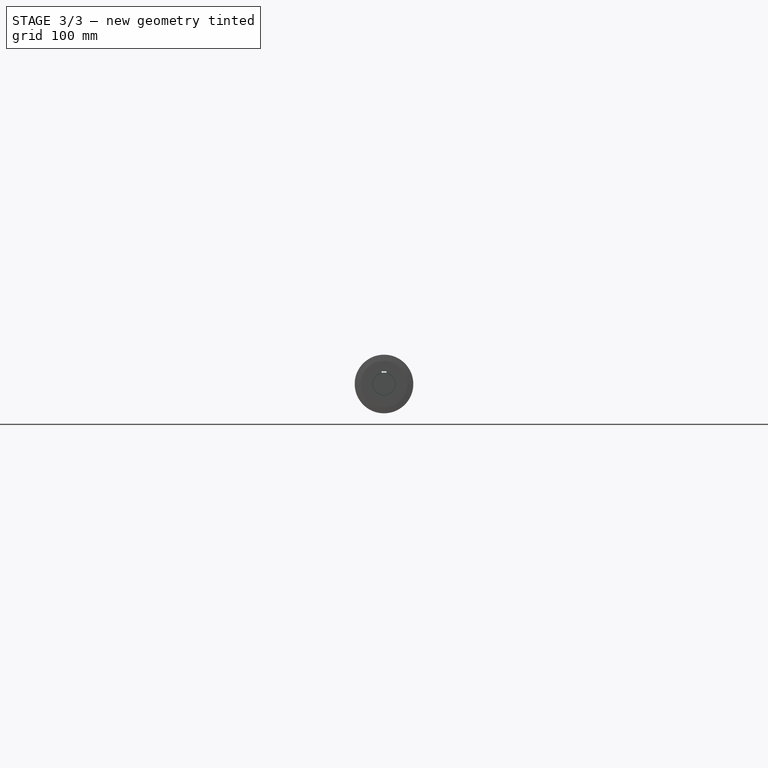
[diagram: stage 3 of 3 — right view after this stage's code; geometry added in this stage tinted green]
FEATURE [Sketcher::SketchObject] Sketch
  FullyConstrained = true
  MapMode = 5
  Placement = pos=(0,0,0) rot=(0.57735,0.57735,0.57735;2.0944rad)
  Support = -> [YZ_Plane]
  sketch-geometry (2):
    g0: Circle CenterX=0 CenterY=0 CenterZ=0 NormalX=0 NormalY=0 NormalZ=1 AngleXU=0 Radius=14.85
    g1: Circle CenterX=0 CenterY=0 CenterZ=0 NormalX=0 NormalY=0 NormalZ=1 AngleXU=0 Radius=12.7
  constraints (4):
    c: Coincident(g0,g-1)
    c: Diameter(g0) = 29.7  'outer_d'
    c: Coincident(g1,g0)
    c: Diameter(g1) = 25.4  'inner_d'
FEATURE [PartDesign::Pad] Pad  label="spacer_49_pad"
  Direction = (1,-2e-16,3e-16)
  Length = 48.85
  Length2 = 10
  Placement = pos=(0,0,0) rot=(0.57735,0.57735,0.57735;2.0944rad)
  Profile = -> Sketch
  ReferenceAxis = -> Sketch [N_Axis]
  Type = 0
FEATURE [PartDesign::CoordinateSystem] LCS_Origin
  AttacherType = Attacher::AttachEngine3D
  MapMode = 2
  Support = -> [X_Axis003]
FEATURE [App::DocumentObjectGroup] Constraints
FEATURE [App::FeaturePython] Variables  # WARN: FeaturePython — macro-defined, semantics opaque (R4)
  Type = App::PropertyContainer
FEATURE [App::DocumentObjectGroup] Configurations
FEATURE [PartDesign::CoordinateSystem] front
  AttacherType = Attacher::AttachEngine3D
  MapMode = 5
  Support = -> [XY_Plane]
FEATURE [PartDesign::CoordinateSystem] back
  AttacherType = Attacher::AttachEngine3D
  AttachmentOffset = pos=(48.85,0,0) rot=(0,0,1;0rad)
  MapMode = 5
  Placement = pos=(48.85,0,0) rot=(0,0,1;0rad)
  Support = -> [XY_Plane]
  expr: .AttachmentOffset.Base.x = Pad.Length
FEATURE [PartDesign::Body] Body  label="spacer_49mm"
  Group = -> [Sketch,Pad,front,back]
  Origin = -> Origin
  Tip = -> Pad
FEATURE [Sketcher::SketchObject] Sketch003
  FullyConstrained = true
  MapMode = 5
  Placement = pos=(0,0,0) rot=(0.57735,0.57735,0.57735;2.0944rad)
  Support = -> [YZ_Plane004]
  sketch-geometry (2):
    g0: Circle CenterX=0 CenterY=0 CenterZ=0 NormalX=0 NormalY=0 NormalZ=1 AngleXU=0 Radius=14.85
    g1: Circle CenterX=0 CenterY=0 CenterZ=0 NormalX=0 NormalY=0 NormalZ=1 AngleXU=0 Radius=12.7
  constraints (4):
    c: Coincident(g0,g-1)
    c: Diameter(g0) = 29.7
    c: Coincident(g1,g0)
    c: Diameter(g1) = 25.4
FEATURE [PartDesign::Pad] Pad001
  Direction = (1,-2e-16,3e-16)
  Length = 15
  Length2 = 10
  Placement = pos=(0,0,0) rot=(0.57735,0.57735,0.57735;2.0944rad)
  Profile = -> Sketch003
  ReferenceAxis = -> Sketch003 [N_Axis]
  Type = 0
FEATURE [PartDesign::CoordinateSystem] back001
  AttacherType = Attacher::AttachEngine3D
  AttachmentOffset = pos=(15,0,0) rot=(0,0,1;0rad)
  MapMode = 5
  Placement = pos=(15,0,0) rot=(0,0,1;0rad)
  Support = -> [XY_Plane004]
  expr: .AttachmentOffset.Base.x = Pad001.Length
FEATURE [PartDesign::CoordinateSystem] front001
  AttacherType = Attacher::AttachEngine3D
  MapMode = 5
  Support = -> [XY_Plane004]
FEATURE [PartDesign::Body] Body002  label="spacer_15mm"
  Group = -> [Sketch003,Pad001,front001,back001]
  Origin = -> Origin004
  Tip = -> Pad001
FEATURE [Sketcher::SketchObject] Sketch004
  FullyConstrained = true
  MapMode = 5
  Placement = pos=(0,0,0) rot=(0.57735,0.57735,0.57735;2.0944rad)
  Support = -> [YZ_Plane005]
  sketch-geometry (2):
    g0: Circle CenterX=0 CenterY=0 CenterZ=0 NormalX=0 NormalY=0 NormalZ=1 AngleXU=0 Radius=14.85
    g1: Circle CenterX=0 CenterY=0 CenterZ=0 NormalX=0 NormalY=0 NormalZ=1 AngleXU=0 Radius=12.7
  constraints (4):
    c: Coincident(g0,g-1)
    c: Diameter(g0) = 29.7
    c: Coincident(g1,g0)
    c: Diameter(g1) = 25.4
FEATURE [PartDesign::Pad] Pad002
  Direction = (1,-2e-16,3e-16)
  Length = 30
  Length2 = 10
  Placement = pos=(0,0,0) rot=(0.57735,0.57735,0.57735;2.0944rad)
  Profile = -> Sketch004
  ReferenceAxis = -> Sketch004 [N_Axis]
  Type = 0
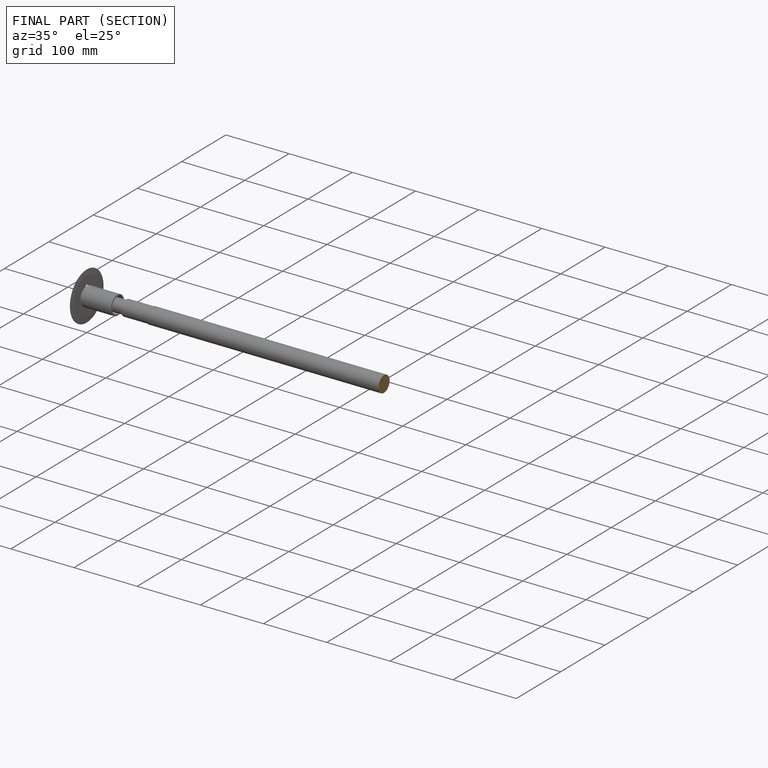
[diagram: finished part — half-section view (interior)]
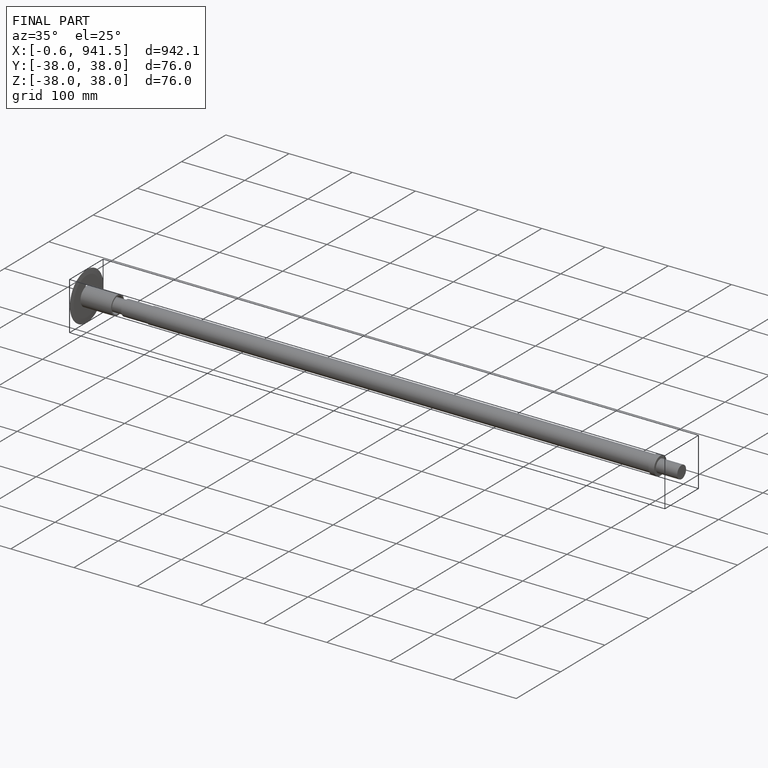
[diagram: finished part — iso view with bounding-box wireframe]
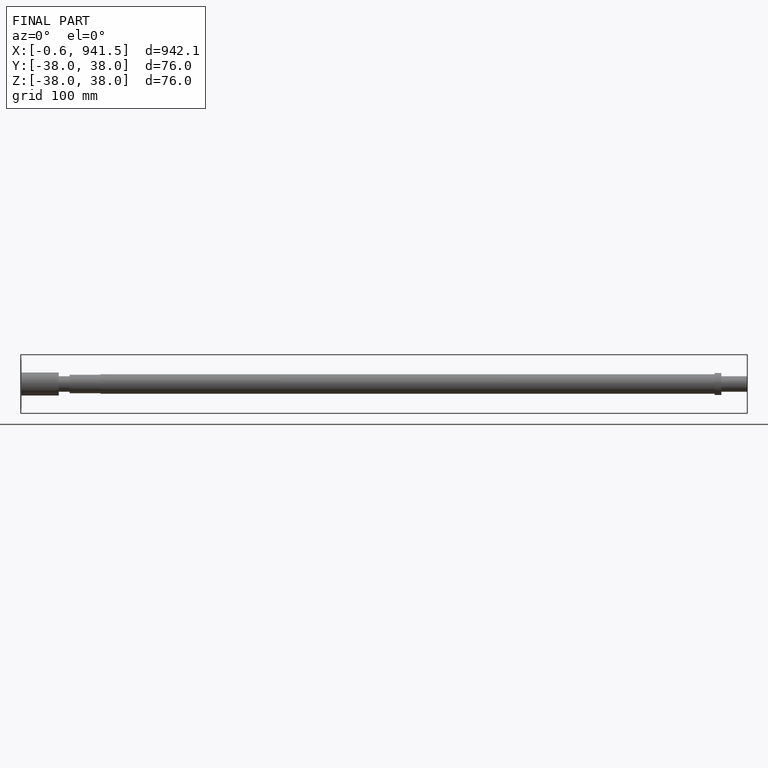
[diagram: finished part — front view with bounding-box wireframe]
